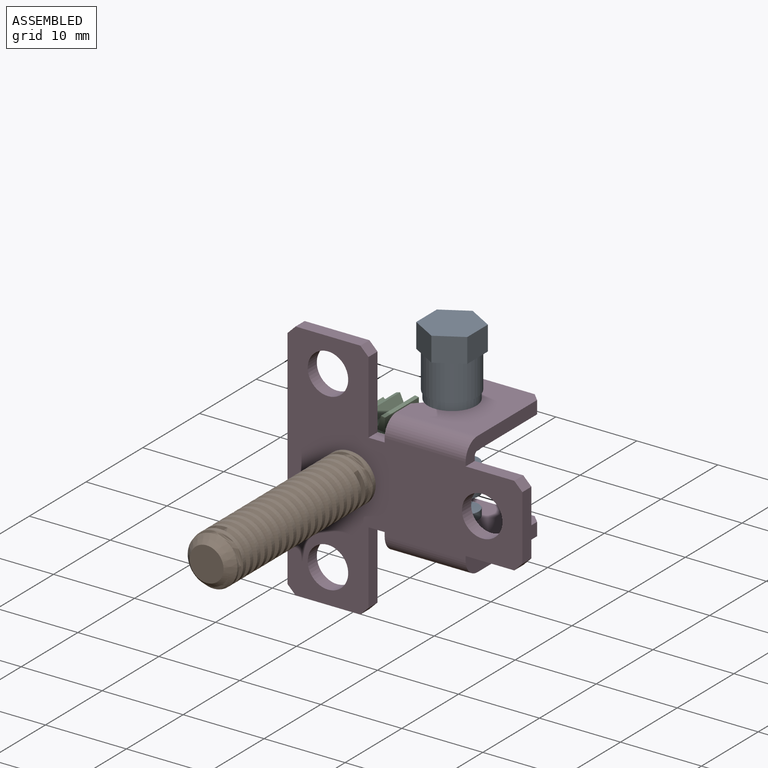
[diagram: assembled view]
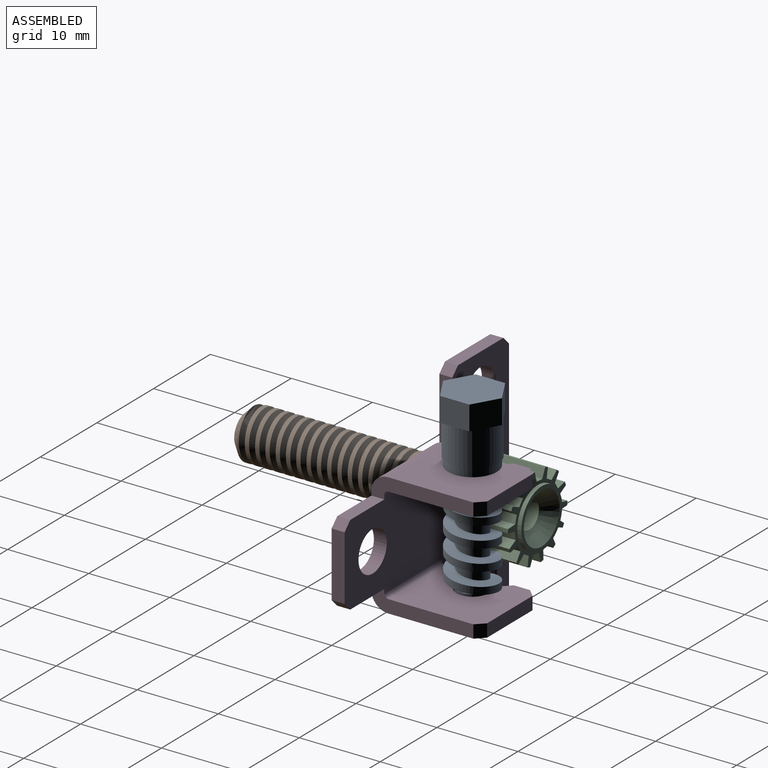
[diagram: assembled view, second angle]
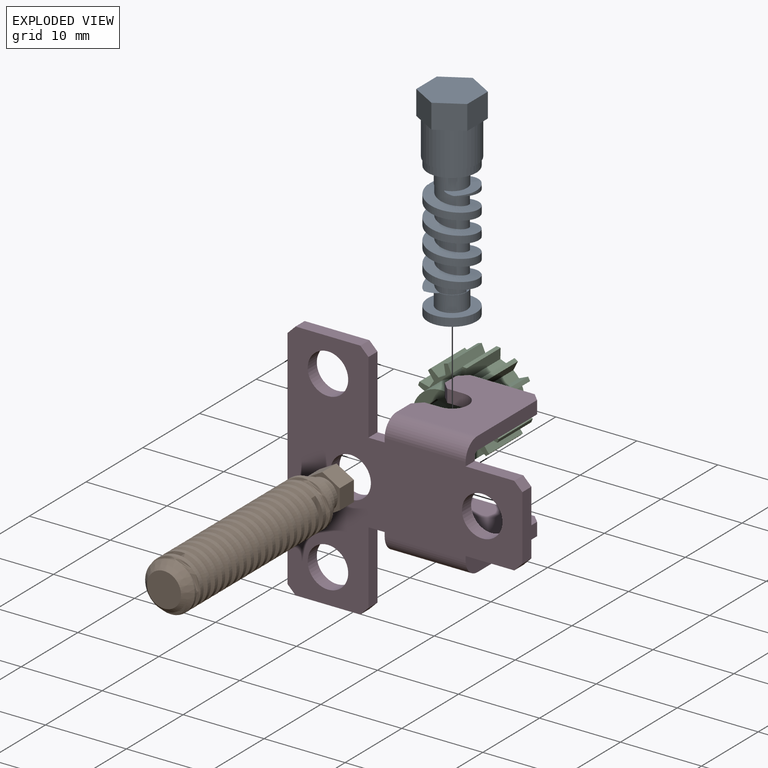
[diagram: exploded view]
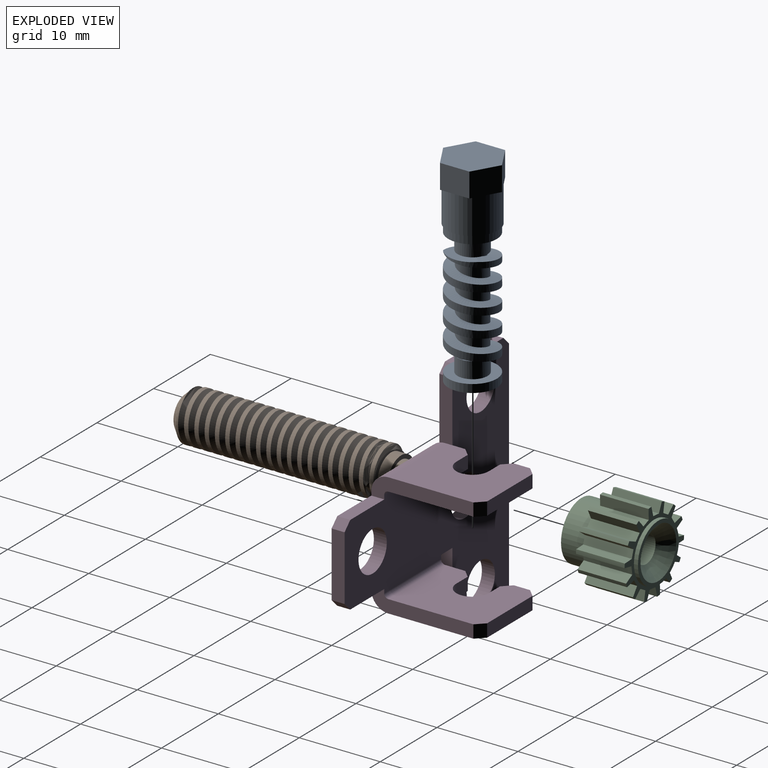
[diagram: exploded view, second angle]
ASSEMBLY  parts=4 mates=3
PART A: 39 faces, bbox 6.3x7.3x25 mm
  f0: bspline ~11.26x5.3mm, area 27.6mm2, adj f3,f6,f9,f27,f28,f38
  f1: bspline ~6x3.46mm, area 8mm2, adj f2,f8,f9,f29,f38
  f2: cylinder r=3mm len=11.6mm, axis (0,0,1), area 74.1mm2, adj f1,f3,f4,f6,f29,f30,f37,f38
  f3: bspline ~6x5.83mm, area 8.1mm2, adj f0,f2,f30,f38
  f4: bspline ~11.81x6.93mm, area 77.9mm2, adj f2,f28,f29,f35,f37
  f5: bspline ~3.44x2.65mm, area 2.9mm2, adj f6,f27,f34,f35,f37
  f6: bspline ~9.88x6.93mm, area 45.2mm2, adj f0,f2,f5,f30,f37
  f7: cylinder r=1.85mm len=3.7mm, axis (0,0,1), area 23.2mm2, adj f9,f10,f38
  f8: cylinder r=1.5mm len=2.53mm, axis (0,0,1), area 1.7mm2, adj f1,f9,f29
  f9: plane 3.7x3.12mm, normal (0,0,-1), area 1.5mm2, adj f0,f1,f7,f8,f28,f29
  f10: plane 6x6mm, normal (0,0,-1), area 17.5mm2, adj f7,f11
  f11: cylinder r=3mm len=6mm, axis (0,0,1), area 18.8mm2, adj f10,f12
  f12: plane 6.3x6.3mm, normal (0,0,-1), area 2.9mm2, adj f11,f13
  f13: cylinder r=3.15mm len=6.3mm, axis (0,0,1), area 87.1mm2, adj f12,f14,f15,f16,f17,f18,f19
  f14: plane 2.73x1.58mm, normal (0,0,-1), area 0.5mm2, adj f13,f21,f22
  f15: plane 3.15x0.91mm, normal (0,0,-1), area 0.5mm2, adj f13,f22,f23
  f16: plane 2.73x1.58mm, normal (0,0,-1), area 0.5mm2, adj f13,f23,f24
  f17: plane 2.73x1.58mm, normal (0,0,-1), area 0.5mm2, adj f13,f24,f25
  f18: plane 3.15x0.91mm, normal (0,0,-1), area 0.5mm2, adj f13,f20,f25
  f19: plane 2.73x1.58mm, normal (0,0,-1), area 0.5mm2, adj f13,f20,f21
  f20: plane 3.15x3mm, normal (0.5,-0.87,0), area 10.9mm2, adj f18,f19,f21,f25,f26
  f21: plane 3.64x3mm, normal (1,0,0), area 10.9mm2, adj f14,f19,f20,f22,f26
  f22: plane 3.15x3mm, normal (0.5,0.87,0), area 10.9mm2, adj f14,f15,f21,f23,f26
  f23: plane 3.15x3mm, normal (-0.5,0.87,0), area 10.9mm2, adj f15,f16,f22,f24,f26
  f24: plane 3.64x3mm, normal (-1,0,0), area 10.9mm2, adj f16,f17,f23,f25,f26
  f25: plane 3.15x3mm, normal (-0.5,-0.87,0), area 10.9mm2, adj f17,f18,f20,f24,f26
  f26: plane 7.27x6.3mm, normal (0,0,1), area 34.4mm2, adj f20,f21,f22,f23,f24,f25
  f27: plane 0.79x0.79mm, normal (0,1,0), area 0.3mm2, adj f0,f5,f28,f34,f35
  f28: cylinder r=1.8mm len=11.6mm, axis (0,0,1), area 69mm2, adj f0,f4,f9,f27,f29,f35
  f29: plane 1.5x0.95mm, normal (0,1,0), area 0.5mm2, adj f1,f2,f4,f8,f9,f28
  f30: plane 0.71x0.12mm, normal (0,1,0), area 0mm2, adj f2,f3,f6
  f31: plane 6x6mm, normal (0,0,-1), area 28.3mm2, adj f32
  f32: cylinder r=3mm len=6mm, axis (0,0,1), area 18.8mm2, adj f31,f33
  f33: plane 6x6mm, normal (0,0,1), area 17.5mm2, adj f32,f36
  f34: cylinder r=1.5mm len=2mm, axis (0,0,1), area 1.1mm2, adj f5,f27,f35
  f35: plane 3.7x2.46mm, normal (0,0,1), area 1.3mm2, adj f4,f5,f27,f28,f34,f36
  f36: cylinder r=1.85mm len=3.7mm, axis (0,0,1), area 23.2mm2, adj f33,f35,f37
  f37: plane 5.2x2.72mm, normal (0,0,-1), area 6.6mm2, adj f2,f4,f5,f6,f36
  f38: plane 4.59x2.76mm, normal (0,0,1), area 5.5mm2, adj f0,f1,f2,f3,f7
PART B: 19 faces, bbox 7.3x31x8.4 mm
  f0: cylinder r=3.1mm len=24.4mm, axis (0,-1,0), area 275.6mm2, adj f2,f14,f15,f16
  f1: plane 4.2x4.2mm, normal (0,-1,0), area 13.9mm2, adj f14
  f2: plane 6.34x6.01mm, normal (0,1,0), area 9mm2, adj f0,f3,f15,f16
  f3: cylinder r=2.4mm len=4.8mm, axis (0,-1,0), area 18.8mm2, adj f2,f4
  f4: plane 4.8x4.8mm, normal (0,1,0), area 6.8mm2, adj f3,f5
  f5: cylinder r=1.9mm len=3.8mm, axis (0,-1,0), area 14.9mm2, adj f4,f6
  f6: plane 4.97x4.3mm, normal (0,-1,0), area 4.7mm2, adj f5,f7,f8,f9,f10,f11,f12
  f7: plane 2.5x2.48mm, normal (1,0,0), area 6.2mm2, adj f6,f8,f10,f13
  f8: plane 2.5x2.15mm, normal (0.5,0,-0.87), area 6.2mm2, adj f6,f7,f9,f13
  f9: plane 2.5x2.15mm, normal (-0.5,0,-0.87), area 6.2mm2, adj f6,f8,f11,f13
  f10: plane 2.5x2.15mm, normal (0.5,0,0.87), area 6.2mm2, adj f6,f7,f12,f13
  f11: plane 2.5x2.48mm, normal (-1,0,0), area 6.2mm2, adj f6,f9,f12,f13
  f12: plane 2.5x2.15mm, normal (-0.5,0,0.87), area 6.2mm2, adj f6,f10,f11,f13
  f13: plane 4.97x4.3mm, normal (0,1,0), area 10.7mm2, adj f7,f8,f9,f10,f11,f12,f17
  f14: cone r=2.1mm half-angle=45deg, axis (0,1,0), area 18.7mm2, adj f0,f1,f15,f16
  f15: bspline ~25.82x8.14mm, area 239.1mm2, adj f0,f2,f14,f16
  f16: bspline ~26.04x8.14mm, area 239.6mm2, adj f0,f2,f14,f15
  f17: cylinder r=1.3mm len=5mm, axis (0,1,0), area 40.8mm2, adj f13,f18
  f18: plane 2.6x2.6mm, normal (0,1,0), area 5.3mm2, adj f17
PART C: 71 faces, bbox 10.5x9.5x10.3 mm
  f0: cylinder r=5.25mm len=6mm, axis (0,1,0), area 3mm2, adj f2,f5,f52,f54
  f1: plane 6x1.24mm, normal (-1,0,-0.1), area 7.5mm2, adj f3,f52,f53,f54
  f2: plane 6x0.89mm, normal (0.7,0,0.72), area 7.5mm2, adj f0,f3,f52,f54
  f3: plane 6x0.9mm, normal (-0.43,0,0.9), area 6mm2, adj f1,f2,f52,f54
  f4: cylinder r=5.25mm len=6mm, axis (0,1,0), area 3mm2, adj f6,f9,f52,f54
  f5: plane 6x1.06mm, normal (-0.85,0,-0.52), area 7.5mm2, adj f0,f7,f52,f54
  f6: plane 6x1.18mm, normal (0.32,0,0.95), area 7.5mm2, adj f4,f7,f52,f54
  f7: plane 6x0.78mm, normal (-0.78,0,0.62), area 6mm2, adj f5,f6,f52,f54
  f8: cylinder r=5.25mm len=6mm, axis (0,1,0), area 3mm2, adj f10,f13,f52,f54
  f9: plane 6x1.04mm, normal (-0.54,0,-0.84), area 7.5mm2, adj f4,f11,f52,f54
  f10: plane 6x1.23mm, normal (-0.12,0,0.99), area 7.5mm2, adj f8,f11,f52,f54
  f11: plane 6x0.98mm, normal (-0.97,0,0.22), area 6mm2, adj f9,f10,f52,f54
  f12: cylinder r=5.25mm len=6mm, axis (0,1,0), area 3mm2, adj f14,f17,f52,f54
  f13: plane 6x1.23mm, normal (-0.12,0,-0.99), area 7.5mm2, adj f8,f15,f52,f54
  f14: plane 6x1.04mm, normal (-0.54,0,0.84), area 7.5mm2, adj f12,f15,f52,f54
  f15: plane 6x0.98mm, normal (-0.97,0,-0.22), area 6mm2, adj f13,f14,f52,f54
  f16: cylinder r=5.25mm len=6mm, axis (0,1,0), area 3mm2, adj f18,f21,f52,f54
  f17: plane 6x1.18mm, normal (0.32,0,-0.95), area 7.5mm2, adj f12,f19,f52,f54
  f18: plane 6x1.06mm, normal (-0.85,0,0.52), area 7.5mm2, adj f16,f19,f52,f54
  f19: plane 6x0.78mm, normal (-0.78,0,-0.62), area 6mm2, adj f17,f18,f52,f54
  f20: cylinder r=5.25mm len=6mm, axis (0,1,0), area 3mm2, adj f22,f25,f52,f54
  f21: plane 6x0.89mm, normal (0.7,0,-0.72), area 7.5mm2, adj f16,f23,f52,f54
  f22: plane 6x1.24mm, normal (-1,0,0.1), area 7.5mm2, adj f20,f23,f52,f54
  f23: plane 6x0.9mm, normal (-0.43,0,-0.9), area 6mm2, adj f21,f22,f52,f54
  f24: cylinder r=5.25mm len=6mm, axis (0,1,0), area 3mm2, adj f26,f29,f52,f54
  f25: plane 6x1.17mm, normal (0.94,0,-0.34), area 7.5mm2, adj f20,f27,f52,f54
  f26: plane 6x1.17mm, normal (-0.94,0,-0.34), area 7.5mm2, adj f24,f27,f52,f54
  f27: plane 6x1mm, normal (0,0,-1), area 6mm2, adj f25,f26,f52,f54
  f28: cylinder r=5.25mm len=6mm, axis (0,1,0), area 3mm2, adj f30,f33,f52,f54
  f29: plane 6x1.24mm, normal (1,0,0.1), area 7.5mm2, adj f24,f31,f52,f54
  f30: plane 6x0.89mm, normal (-0.7,0,-0.72), area 7.5mm2, adj f28,f31,f52,f54
  f31: plane 6x0.9mm, normal (0.43,0,-0.9), area 6mm2, adj f29,f30,f52,f54
  f32: cylinder r=5.25mm len=6mm, axis (0,1,0), area 3mm2, adj f34,f37,f52,f54
  f33: plane 6x1.06mm, normal (0.85,0,0.52), area 7.5mm2, adj f28,f35,f52,f54
  f34: plane 6x1.18mm, normal (-0.32,0,-0.95), area 7.5mm2, adj f32,f35,f52,f54
  f35: plane 6x0.78mm, normal (0.78,0,-0.62), area 6mm2, adj f33,f34,f52,f54
  f36: cylinder r=5.25mm len=6mm, axis (0,1,0), area 3mm2, adj f38,f41,f52,f54
  f37: plane 6x1.04mm, normal (0.54,0,0.84), area 7.5mm2, adj f32,f39,f52,f54
  f38: plane 6x1.23mm, normal (0.12,0,-0.99), area 7.5mm2, adj f36,f39,f52,f54
  f39: plane 6x0.98mm, normal (0.97,0,-0.22), area 6mm2, adj f37,f38,f52,f54
  f40: cylinder r=5.25mm len=6mm, axis (0,1,0), area 3mm2, adj f42,f45,f52,f54
  f41: plane 6x1.23mm, normal (0.12,0,0.99), area 7.5mm2, adj f36,f43,f52,f54
  f42: plane 6x1.04mm, normal (0.54,0,-0.84), area 7.5mm2, adj f40,f43,f52,f54
  f43: plane 6x0.98mm, normal (0.97,0,0.22), area 6mm2, adj f41,f42,f52,f54
  f44: cylinder r=5.25mm len=6mm, axis (0,1,0), area 3mm2, adj f46,f49,f52,f54
  f45: plane 6x1.18mm, normal (-0.32,0,0.95), area 7.5mm2, adj f40,f47,f52,f54
  f46: plane 6x1.06mm, normal (0.85,0,-0.52), area 7.5mm2, adj f44,f47,f52,f54
  f47: plane 6x0.78mm, normal (0.78,0,0.62), area 6mm2, adj f45,f46,f52,f54
  f48: cylinder r=5.25mm len=6mm, axis (0,1,0), area 3mm2, adj f50,f52,f54,f55
  f49: plane 6x0.89mm, normal (-0.7,0,0.72), area 7.5mm2, adj f44,f51,f52,f54
  f50: plane 6x1.24mm, normal (1,0,-0.1), area 7.5mm2, adj f48,f51,f52,f54
  f51: plane 6x0.9mm, normal (0.43,0,0.9), area 6mm2, adj f49,f50,f52,f54
  f52: plane 10.5x10.34mm, normal (0,1,0), area 21.2mm2, adj f0,f1,f2,f3,f4,f5,f6,f7
  f53: cylinder r=5.25mm len=6mm, axis (0,1,0), area 3mm2, adj f1,f52,f54,f56
  f54: plane 10.5x10.34mm, normal (0,-1,0), area 21.2mm2, adj f0,f1,f2,f3,f4,f5,f6,f7
  f55: plane 6x1.17mm, normal (-0.94,0,0.34), area 7.5mm2, adj f48,f52,f54,f57
  f56: plane 6x1.17mm, normal (0.94,0,0.34), area 7.5mm2, adj f52,f53,f54,f57
  f57: plane 6x1mm, normal (0,0,1), area 6mm2, adj f52,f54,f55,f56
  f58: cylinder r=3.6mm len=7.2mm, axis (0,-1,0), area 11.3mm2, adj f52,f59
  f59: plane 7.2x7.2mm, normal (0,1,0), area 9.5mm2, adj f58,f70
  f60: cylinder r=3.6mm len=7.2mm, axis (0,1,0), area 67.9mm2, adj f54,f61
  f61: plane 7.2x7.2mm, normal (0,-1,0), area 23.9mm2, adj f60,f62,f63,f64,f65,f66,f67
  f62: plane 4x2.2mm, normal (0.5,0,-0.87), area 10.2mm2, adj f61,f63,f67,f68
  f63: plane 4x2.54mm, normal (1,0,0), area 10.2mm2, adj f61,f62,f64,f68
  f64: plane 4x2.2mm, normal (0.5,0,0.87), area 10.2mm2, adj f61,f63,f65,f68
  f65: plane 4x2.2mm, normal (-0.5,0,0.87), area 10.2mm2, adj f61,f64,f66,f68
  f66: plane 4x2.54mm, normal (-1,0,0), area 10.2mm2, adj f61,f65,f67,f68
  f67: plane 4x2.2mm, normal (-0.5,0,-0.87), area 10.2mm2, adj f61,f62,f66,f68
  f68: plane 5.08x4.4mm, normal (0,-1,0), area 8.2mm2, adj f62,f63,f64,f65,f66,f67,f69
  f69: cylinder r=1.65mm len=4mm, axis (0,1,0), area 41.5mm2, adj f68,f70
  f70: cone r=1.65mm half-angle=45deg, axis (0,1,0), area 32mm2, adj f59,f69
PART D: 60 faces, bbox 29x13.6x30 mm
  f0: plane 9x1.6mm, normal (1,0,0), area 14.4mm2, adj f1,f18,f19,f24
  f1: plane 2x1.6mm, normal (0,0,-1), area 3.2mm2, adj f0,f2,f18,f19
  f2: plane 1.6x0.5mm, normal (-1,0,0), area 0.8mm2, adj f1,f18,f19,f40
  f3: plane 1.6x0.5mm, normal (1,0,0), area 0.8mm2, adj f4,f18,f19,f39
  f4: plane 6x1.6mm, normal (0,0,-1), area 9.6mm2, adj f3,f18,f19,f22
  f5: plane 8x1.6mm, normal (1,0,0), area 12.8mm2, adj f18,f19,f21,f22
  f6: plane 6x1.6mm, normal (0,0,1), area 9.6mm2, adj f7,f18,f19,f21
  f7: plane 1.6x0.5mm, normal (1,0,0), area 0.8mm2, adj f6,f18,f19,f56
  f8: plane 1.6x0.5mm, normal (-1,0,0), area 0.8mm2, adj f9,f18,f19,f57
  f9: plane 2x1.6mm, normal (0,0,1), area 3.2mm2, adj f8,f10,f18,f19
  f10: plane 9x1.6mm, normal (1,0,0), area 14.4mm2, adj f9,f18,f19,f20
  f11: plane 8x1.6mm, normal (0,0,1), area 12.8mm2, adj f18,f19,f20,f23
  f12: plane 28x1.6mm, normal (-1,0,0), area 44.8mm2, adj f18,f19,f23,f25
  f13: cylinder r=2.5mm len=5mm, axis (0,-1,0), area 25.1mm2, adj f18,f19
  f14: cylinder r=2.5mm len=5mm, axis (0,-1,0), area 25.1mm2, adj f18,f19
  f15: cylinder r=2.5mm len=5mm, axis (0,-1,0), area 25.1mm2, adj f18,f19
  f16: cylinder r=2.5mm len=5mm, axis (0,-1,0), area 25.1mm2, adj f18,f19
  f17: plane 8x1.6mm, normal (0,0,-1), area 12.8mm2, adj f18,f19,f24,f25
  f18: plane 30x29mm, normal (0,-1,0), area 418.5mm2, adj f0,f1,f2,f3,f4,f5,f6,f7
  f19: plane 30x29mm, normal (0,1,0), area 418.5mm2, adj f0,f1,f2,f3,f4,f5,f6,f7
  f20: plane 1.6x1mm, normal (0.71,0,0.71), area 2.3mm2, adj f10,f11,f18,f19
  f21: plane 1.6x1mm, normal (0.71,0,0.71), area 2.3mm2, adj f5,f6,f18,f19
  f22: plane 1.6x1mm, normal (0.71,0,-0.71), area 2.3mm2, adj f4,f5,f18,f19
  f23: plane 1.6x1mm, normal (-0.71,0,0.71), area 2.3mm2, adj f11,f12,f18,f19
  f24: plane 1.6x1mm, normal (0.71,0,-0.71), area 2.3mm2, adj f0,f17,f18,f19
  f25: plane 1.6x1mm, normal (-0.71,0,-0.71), area 2.3mm2, adj f12,f17,f18,f19
  f26: plane 2x1.6mm, normal (0,-1,0), area 3.2mm2, adj f32,f33,f34,f35
  f27: plane 2x1.6mm, normal (-1,0,0), area 3.2mm2, adj f33,f34,f35,f37
  f28: plane 8x1.6mm, normal (0,1,0), area 12.8mm2, adj f33,f34,f36,f37
  f29: plane 10.5x1.6mm, normal (1,0,0), area 16.8mm2, adj f33,f34,f36,f39
  f30: plane 2.5x1.6mm, normal (-1,0,0), area 4mm2, adj f33,f34,f38,f40
  f31: plane 2x1.6mm, normal (0,1,0), area 3.2mm2, adj f32,f33,f34,f38
  f32: cylinder r=2mm len=4mm, axis (0,0,-1), area 10.1mm2, adj f26,f31,f33,f34
  f33: plane 11.5x10mm, normal (0,0,-1), area 94.7mm2, adj f26,f27,f28,f29,f30,f31,f32,f35
  f34: plane 11.5x10mm, normal (0,0,1), area 94.7mm2, adj f26,f27,f28,f29,f30,f31,f32,f35
  f35: plane 1.6x1mm, normal (-0.71,-0.71,0), area 2.3mm2, adj f26,f27,f33,f34
  f36: plane 1.6x1mm, normal (0.71,0.71,0), area 2.3mm2, adj f28,f29,f33,f34
  f37: plane 1.6x1mm, normal (-0.71,0.71,0), area 2.3mm2, adj f27,f28,f33,f34
  f38: plane 1.6x1mm, normal (-0.71,0.71,0), area 2.3mm2, adj f30,f31,f33,f34
  f39: plane 2.1x2.1mm, normal (1,0,0), area 3.3mm2, adj f3,f29,f41,f42
  f40: plane 2.1x2.1mm, normal (-1,0,0), area 3.3mm2, adj f2,f30,f41,f42
  f41: cylinder r=2.1mm len=10mm, axis (1,0,0), area 33mm2, adj f18,f33,f39,f40
  f42: cylinder r=0.5mm len=10mm, axis (1,0,0), area 7.9mm2, adj f19,f34,f39,f40
  f43: plane 10.5x1.6mm, normal (1,0,0), area 16.8mm2, adj f50,f51,f52,f56
  f44: plane 8x1.6mm, normal (0,1,0), area 12.8mm2, adj f50,f51,f52,f54
  f45: plane 2x1.6mm, normal (-1,0,0), area 3.2mm2, adj f50,f51,f53,f54
  f46: plane 2x1.6mm, normal (0,-1,0), area 3.2mm2, adj f47,f50,f51,f53
  f47: cylinder r=2mm len=4mm, axis (0,0,1), area 10.1mm2, adj f46,f48,f50,f51
  f48: plane 2x1.6mm, normal (0,1,0), area 3.2mm2, adj f47,f50,f51,f55
  f49: plane 2.5x1.6mm, normal (-1,0,0), area 4mm2, adj f50,f51,f55,f57
  f50: plane 11.5x10mm, normal (0,0,1), area 94.7mm2, adj f43,f44,f45,f46,f47,f48,f49,f52
  f51: plane 11.5x10mm, normal (0,0,-1), area 94.7mm2, adj f43,f44,f45,f46,f47,f48,f49,f52
  f52: plane 1.6x1mm, normal (0.71,0.71,0), area 2.3mm2, adj f43,f44,f50,f51
  f53: plane 1.6x1mm, normal (-0.71,-0.71,0), area 2.3mm2, adj f45,f46,f50,f51
  f54: plane 1.6x1mm, normal (-0.71,0.71,0), area 2.3mm2, adj f44,f45,f50,f51
  f55: plane 1.6x1mm, normal (-0.71,0.71,0), area 2.3mm2, adj f48,f49,f50,f51
  f56: plane 2.1x2.1mm, normal (1,0,0), area 3.3mm2, adj f7,f43,f58,f59
  f57: plane 2.1x2.1mm, normal (-1,0,0), area 3.3mm2, adj f8,f49,f58,f59
  f58: cylinder r=2.1mm len=10mm, axis (1,0,0), area 33mm2, adj f18,f50,f56,f57
  f59: cylinder r=0.5mm len=10mm, axis (1,0,0), area 7.9mm2, adj f19,f51,f56,f57
PLACE A t=(-2,6,-8.8)mm
PLACE B t=(-9.2,3.4,0)mm
PLACE C rot(axis=(0,1,0),47deg) t=(-9.2,9,0)mm
PLACE D at identity fixed
MATE revolute B.f0 <-> D.f14  axis (0,1,0) through (-9.2,-1.6,0)mm
MATE revolute A.f2 <-> D.f32  axis (0,0,1) through (-2,6,6.8)mm
MATE revolute D.f14 <-> C.f60  axis (0,1,0) through (-9.2,0,0)mm
